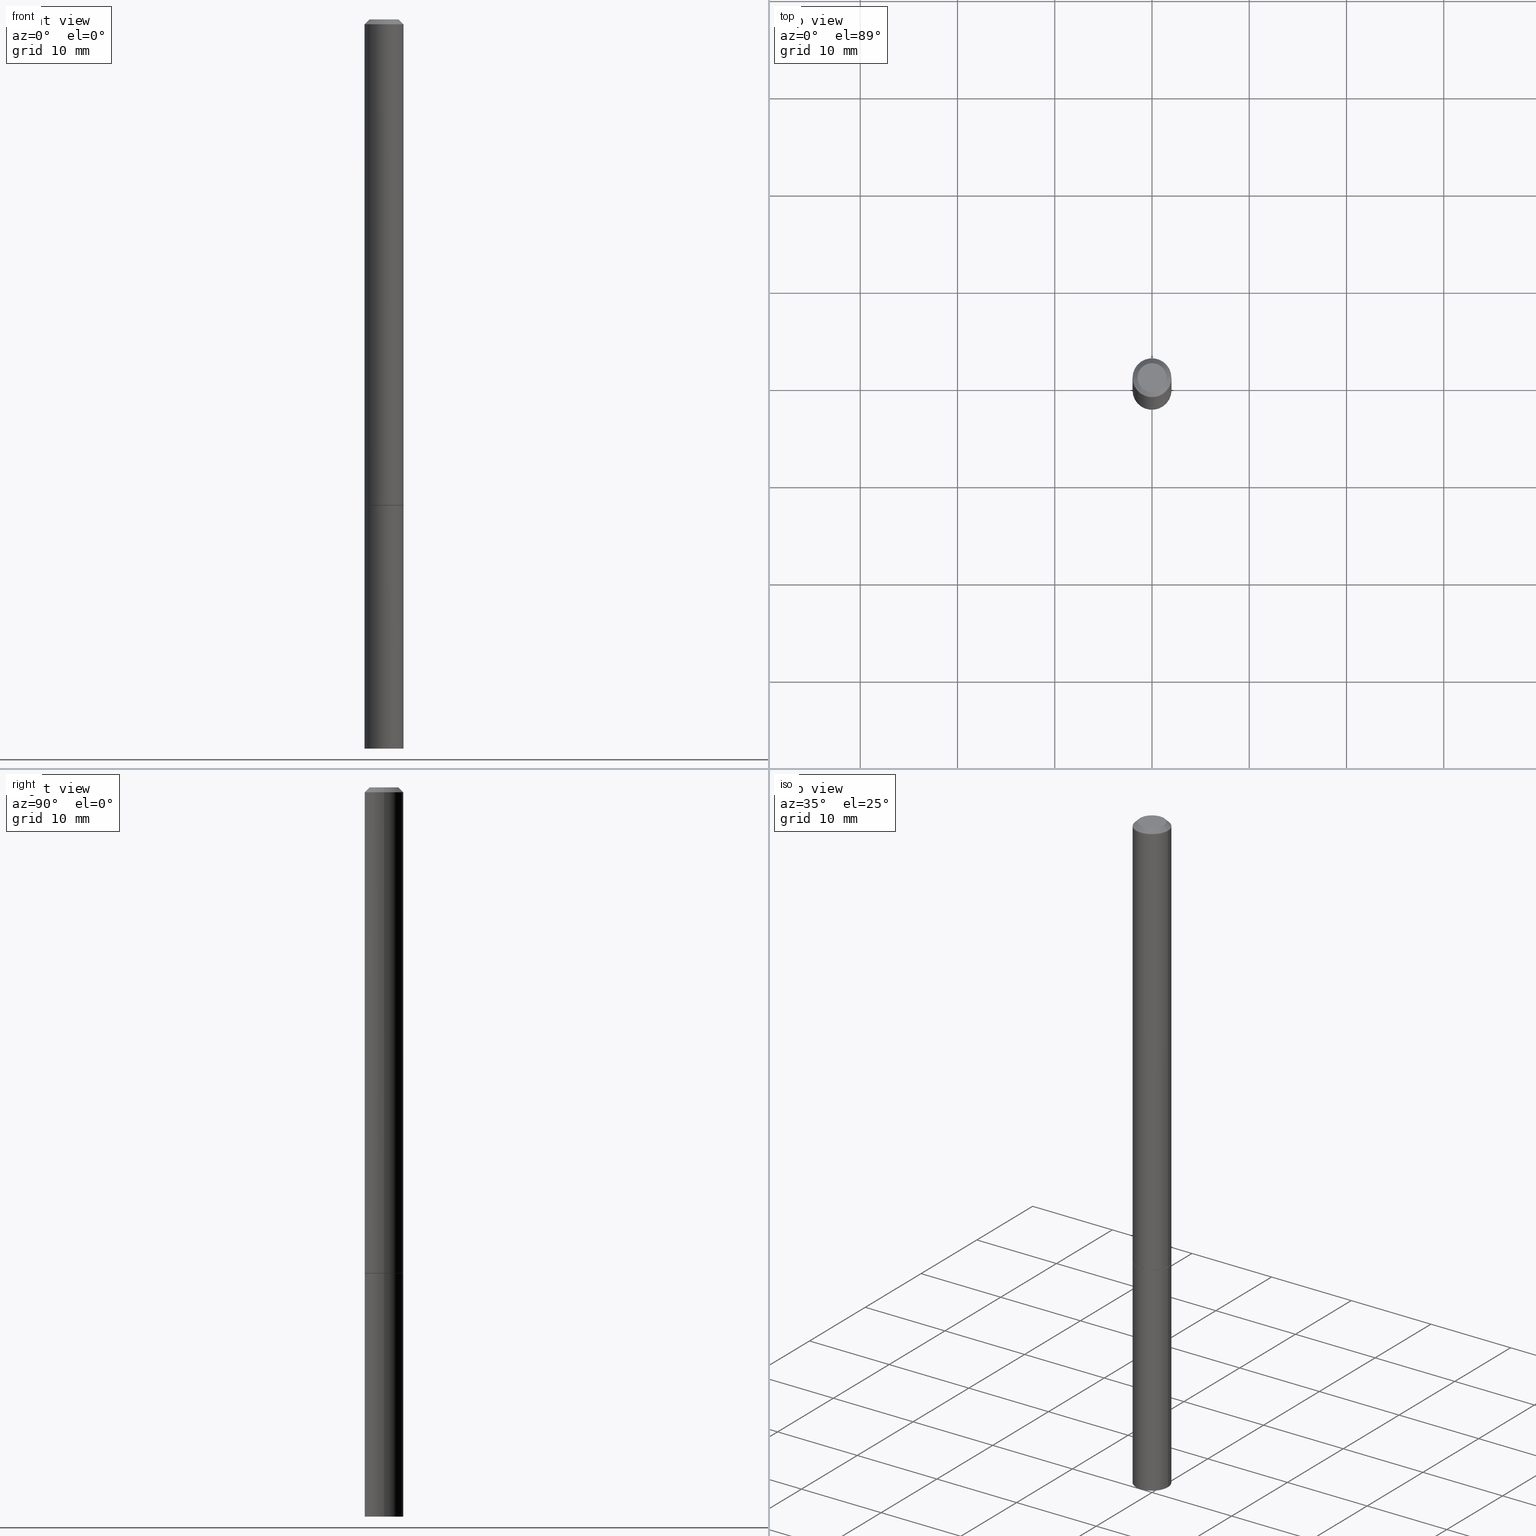
[diagram: canonical four-view strip — front | top / right | iso, engineering-drawing reading convention]
A machine part, canonical four-view strip (front | top / right | iso — engineering-drawing reading convention). The complete STEP part file that produces these views, byte-faithful:
ISO-10303-21;
HEADER;
FILE_DESCRIPTION (( 'STEP AP203' ),
    '1' );
FILE_NAME ('43103.STEP',
    '2024-02-28T03:52:49',
    ( '' ),
    ( '' ),
    'SwSTEP 2.0',
    'SolidWorks 2023',
    '' );
FILE_SCHEMA (( 'CONFIG_CONTROL_DESIGN' ));
ENDSEC;

DATA;
#1 = DIRECTION ( 'NONE',  ( -2.445468806185136597E-29, 3.491481338843145583E-15, 1.000000000000000000 ) ) ;
#2 = PERSON_AND_ORGANIZATION ( #279, #108 ) ;
#3 = CARTESIAN_POINT ( 'NONE',  ( -0.05874999999999980238, 4.451638707024979054E-16, -2.990994270918716988E-30 ) ) ;
#4 = APPLICATION_PROTOCOL_DEFINITION ( 'international standard', 'config_control_design', 1994, #148 ) ;
#5 = DIRECTION ( 'NONE',  ( -0.7071067811865467956, 2.468850131082249172E-15, -0.7071067811865482389 ) ) ;
#6 = ORIENTED_EDGE ( 'NONE', *, *, #169, .F. ) ;
#7 = EDGE_CURVE ( 'NONE', #15, #336, #228, .T. ) ;
#8 = PERSON_AND_ORGANIZATION_ROLE ( 'design_supplier' ) ;
#9 = ORIENTED_EDGE ( 'NONE', *, *, #80, .T. ) ;
#10 = MECHANICAL_CONTEXT ( 'NONE', #148, 'mechanical' ) ;
#11 = DIRECTION ( 'NONE',  ( 2.438088387897960049E-29, -3.491481338843145188E-15, -1.000000000000000000 ) ) ;
#12 =( GEOMETRIC_REPRESENTATION_CONTEXT ( 3 ) GLOBAL_UNCERTAINTY_ASSIGNED_CONTEXT ( ( #47 ) ) GLOBAL_UNIT_ASSIGNED_CONTEXT ( ( #324, #186, #194 ) ) REPRESENTATION_CONTEXT ( 'NONE', 'WORKASPACE' ) );
#13 = VERTEX_POINT ( 'NONE', #56 ) ;
#14 = DIRECTION ( 'NONE',  ( -2.445468806185136877E-29, 3.491481338843145188E-15, 1.000000000000000000 ) ) ;
#15 = VERTEX_POINT ( 'NONE', #19 ) ;
#16 = ADVANCED_FACE ( 'NONE', ( #26 ), #218, .T. ) ;
#17 = AXIS2_PLACEMENT_3D ( 'NONE', #284, #256, #144 ) ;
#18 = ADVANCED_BREP_SHAPE_REPRESENTATION ( '43103', ( #45, #286, #259 ), #12 ) ;
#19 = CARTESIAN_POINT ( 'NONE',  ( 0.07875000000000000056, -7.419397845041680468E-15, -1.967499999999999805 ) ) ;
#20 = DIRECTION ( 'NONE',  ( 1.000000000000000000, -6.982962677686265922E-15, 4.876176775795935232E-29 ) ) ;
#21 = ORIENTED_EDGE ( 'NONE', *, *, #185, .T. ) ;
#22 = DIRECTION ( 'NONE',  ( 1.000000000000000000, -6.982962677686266711E-15, 4.876176775795935793E-29 ) ) ;
#23 = DATE_AND_TIME ( #161, #248 ) ;
#24 = ORIENTED_EDGE ( 'NONE', *, *, #290, .F. ) ;
#25 = VERTEX_POINT ( 'NONE', #330 ) ;
#26 = FACE_OUTER_BOUND ( 'NONE', #130, .T. ) ;
#27 = CARTESIAN_POINT ( 'NONE',  ( 7.220980290903470182E-29, -1.030964609733603853E-14, -2.952799999999999869 ) ) ;
#28 = PERSON_AND_ORGANIZATION ( #279, #108 ) ;
#29 = CARTESIAN_POINT ( 'NONE',  ( 0.000000000000000000, 0.000000000000000000, 0.000000000000000000 ) ) ;
#30 = DIRECTION ( 'NONE',  ( 2.438088387897960049E-29, -3.491481338843145188E-15, -1.000000000000000000 ) ) ;
#31 = DATE_AND_TIME ( #337, #232 ) ;
#32 = CARTESIAN_POINT ( 'NONE',  ( -0.07874999999999977851, 4.800786840909289628E-16, -0.02000000000000001776 ) ) ;
#33 = DIRECTION ( 'NONE',  ( -2.445468806185136597E-29, 3.491481338843145583E-15, 1.000000000000000000 ) ) ;
#34 = LOCAL_TIME ( 22, 52, 49.00000000000000000, #316 ) ;
#35 = EDGE_LOOP ( 'NONE', ( #287, #54, #63, #102 ) ) ;
#36 = APPROVAL_ROLE ( '' ) ;
#37 = LINE ( 'NONE', #236, #247 ) ;
#38 = DIRECTION ( 'NONE',  ( -2.445468806185136597E-29, 3.491481338843145583E-15, 1.000000000000000000 ) ) ;
#39 = AXIS2_PLACEMENT_3D ( 'NONE', #267, #30, #313 ) ;
#40 = EDGE_LOOP ( 'NONE', ( #354, #9, #167, #126 ) ) ;
#41 = CIRCLE ( 'NONE', #155, 0.07874999999999977851 ) ;
#42 = ORIENTED_EDGE ( 'NONE', *, *, #322, .T. ) ;
#43 = DIRECTION ( 'NONE',  ( -2.445468806185136597E-29, 3.491481338843145583E-15, 1.000000000000000000 ) ) ;
#44 = PRODUCT_RELATED_PRODUCT_CATEGORY ( 'detail', '', ( #132 ) ) ;
#45 = MANIFOLD_SOLID_BREP ( 'Body-Move/Copy2[1]', #344 ) ;
#46 = AXIS2_PLACEMENT_3D ( 'NONE', #89, #33, #20 ) ;
#47 = UNCERTAINTY_MEASURE_WITH_UNIT (LENGTH_MEASURE( 1.000000000000000082E-05 ), #324, 'distance_accuracy_value', 'NONE');
#48 = LINE ( 'NONE', #212, #356 ) ;
#49 = ADVANCED_FACE ( 'NONE', ( #136 ), #326, .T. ) ;
#50 = DIRECTION ( 'NONE',  ( -2.445468806185136597E-29, 3.491481338843145583E-15, 1.000000000000000000 ) ) ;
#51 = DIRECTION ( 'NONE',  ( -2.445468806185136597E-29, 3.491481338843145583E-15, 1.000000000000000000 ) ) ;
#52 = PERSON_AND_ORGANIZATION_ROLE ( 'creator' ) ;
#53 = PERSON_AND_ORGANIZATION ( #279, #108 ) ;
#54 = ORIENTED_EDGE ( 'NONE', *, *, #113, .T. ) ;
#55 = DATE_TIME_ROLE ( 'creation_date' ) ;
#56 = CARTESIAN_POINT ( 'NONE',  ( 0.07875000000000000056, -1.085955440820383187E-14, -2.952799999999999869 ) ) ;
#57 = DATE_TIME_ROLE ( 'classification_date' ) ;
#58 = CARTESIAN_POINT ( 'NONE',  ( 4.811459876169255671E-29, -6.869489534173887122E-15, -1.967499999999999805 ) ) ;
#59 = ADVANCED_FACE ( 'NONE', ( #190 ), #62, .T. ) ;
#60 = DIRECTION ( 'NONE',  ( -1.000000000000000000, 6.982962677686265922E-15, 0.000000000000000000 ) ) ;
#61 = AXIS2_PLACEMENT_3D ( 'NONE', #249, #83, #198 ) ;
#62 = CONICAL_SURFACE ( 'NONE', #217, 0.07774999999999999967, 0.7853981633972775267 ) ;
#63 = ORIENTED_EDGE ( 'NONE', *, *, #240, .F. ) ;
#64 = APPROVAL_PERSON_ORGANIZATION ( #275, #283, #329 ) ;
#65 = CARTESIAN_POINT ( 'NONE',  ( 4.890937612370276662E-31, -6.982962677686296539E-17, -0.02000000000000001776 ) ) ;
#66 = DIRECTION ( 'NONE',  ( 0.7071067811864267805, -2.468850131080992517E-15, 0.7071067811866682540 ) ) ;
#67 = CARTESIAN_POINT ( 'NONE',  ( 4.813905344975441835E-29, -6.872981015512731707E-15, -1.968500000000000139 ) ) ;
#68 = AXIS2_PLACEMENT_3D ( 'NONE', #133, #195, #244 ) ;
#69 = CC_DESIGN_PERSON_AND_ORGANIZATION_ASSIGNMENT ( #160, #8, ( #295 ) ) ;
#70 = DIRECTION ( 'NONE',  ( -2.445468806185136597E-29, 3.491481338843145583E-15, 1.000000000000000000 ) ) ;
#71 = DIRECTION ( 'NONE',  ( 1.000000000000000000, -6.982962677686261977E-15, 0.000000000000000000 ) ) ;
#72 = AXIS2_PLACEMENT_3D ( 'NONE', #122, #38, #124 ) ;
#73 = ADVANCED_FACE ( 'NONE', ( #276 ), #299, .T. ) ;
#74 = CARTESIAN_POINT ( 'NONE',  ( 0.07875000000000000056, -7.422889326380523475E-15, -1.968499999999999694 ) ) ;
#75 = DATE_AND_TIME ( #258, #334 ) ;
#76 = CARTESIAN_POINT ( 'NONE',  ( 0.000000000000000000, 0.000000000000000000, 0.000000000000000000 ) ) ;
#77 = APPROVAL_PERSON_ORGANIZATION ( #257, #95, #229 ) ;
#78 = DIRECTION ( 'NONE',  ( 1.000000000000000000, -6.982962677686265922E-15, 4.876176775795935793E-29 ) ) ;
#79 = FACE_OUTER_BOUND ( 'NONE', #94, .T. ) ;
#80 = EDGE_CURVE ( 'NONE', #213, #336, #225, .T. ) ;
#81 = VERTEX_POINT ( 'NONE', #307 ) ;
#82 = FACE_OUTER_BOUND ( 'NONE', #250, .T. ) ;
#83 = DIRECTION ( 'NONE',  ( -2.445468806185136597E-29, 3.491481338843145583E-15, 1.000000000000000000 ) ) ;
#84 = DIRECTION ( 'NONE',  ( -2.445468806185136597E-29, 3.491481338843145583E-15, 1.000000000000000000 ) ) ;
#85 = EDGE_CURVE ( 'NONE', #156, #15, #305, .T. ) ;
#86 = CARTESIAN_POINT ( 'NONE',  ( 0.07874999999999977851, -6.100938441013695115E-16, -0.02000000000000001776 ) ) ;
#87 = AXIS2_PLACEMENT_3D ( 'NONE', #29, #343, #92 ) ;
#88 = AXIS2_PLACEMENT_3D ( 'NONE', #304, #11, #320 ) ;
#89 = CARTESIAN_POINT ( 'NONE',  ( 0.000000000000000000, 0.000000000000000000, 0.000000000000000000 ) ) ;
#90 = APPROVAL_STATUS ( 'not_yet_approved' ) ;
#91 = ORIENTED_EDGE ( 'NONE', *, *, #143, .F. ) ;
#92 = DIRECTION ( 'NONE',  ( 1.000000000000000000, -6.982962677686266711E-15, 4.876176775795935793E-29 ) ) ;
#93 = LINE ( 'NONE', #203, #117 ) ;
#94 = EDGE_LOOP ( 'NONE', ( #125, #341, #6, #158 ) ) ;
#95 = APPROVAL ( #90, 'UNSPECIFIED' ) ;
#96 = VERTEX_POINT ( 'NONE', #3 ) ;
#97 = PLANE ( 'NONE',  #39 ) ;
#98 = PRODUCT_DEFINITION ( 'UNKNOWN', '', #295, #293 ) ;
#99 = ORIENTED_EDGE ( 'NONE', *, *, #269, .F. ) ;
#100 = VECTOR ( 'NONE', #362, 39.37007874015748143 ) ;
#101 = APPROVAL_STATUS ( 'not_yet_approved' ) ;
#102 = ORIENTED_EDGE ( 'NONE', *, *, #7, .F. ) ;
#103 = EDGE_CURVE ( 'NONE', #140, #15, #210, .T. ) ;
#104 = DIRECTION ( 'NONE',  ( 1.000000000000000000, -6.982962677686261977E-15, 0.000000000000000000 ) ) ;
#105 = AXIS2_PLACEMENT_3D ( 'NONE', #58, #123, #119 ) ;
#106 = CONICAL_SURFACE ( 'NONE', #215, 0.07874999999999977851, 0.7853981633974472798 ) ;
#107 = ORIENTED_EDGE ( 'NONE', *, *, #80, .F. ) ;
#108 = ORGANIZATION ( 'UNSPECIFIED', 'UNSPECIFIED', '' ) ;
#109 = DIRECTION ( 'NONE',  ( 2.445468806185136597E-29, -3.491481338843145583E-15, -1.000000000000000000 ) ) ;
#110 = APPROVAL_DATE_TIME ( #23, #283 ) ;
#111 = ORIENTED_EDGE ( 'NONE', *, *, #113, .F. ) ;
#112 = FACE_OUTER_BOUND ( 'NONE', #178, .T. ) ;
#113 = EDGE_CURVE ( 'NONE', #156, #332, #37, .T. ) ;
#114 = CARTESIAN_POINT ( 'NONE',  ( 4.813905344975441835E-29, -6.872981015512731707E-15, -1.968500000000000139 ) ) ;
#115 = APPROVAL_STATUS ( 'not_yet_approved' ) ;
#116 = EDGE_LOOP ( 'NONE', ( #235, #266, #197, #351 ) ) ;
#117 = VECTOR ( 'NONE', #171, 39.37007874015748143 ) ;
#118 = DIMENSIONAL_EXPONENTS ( 1.000000000000000000, 0.000000000000000000, 0.000000000000000000, 0.000000000000000000, 0.000000000000000000, 0.000000000000000000, 0.000000000000000000 ) ;
#119 = DIRECTION ( 'NONE',  ( 1.000000000000000000, -6.982962677686261977E-15, 0.000000000000000000 ) ) ;
#120 = PERSON_AND_ORGANIZATION ( #279, #108 ) ;
#121 = CC_DESIGN_PERSON_AND_ORGANIZATION_ASSIGNMENT ( #53, #230, ( #350 ) ) ;
#122 = CARTESIAN_POINT ( 'NONE',  ( 4.890937612370276662E-31, -6.982962677686296539E-17, -0.02000000000000001776 ) ) ;
#123 = DIRECTION ( 'NONE',  ( -2.445468806185136597E-29, 3.491481338843145583E-15, 1.000000000000000000 ) ) ;
#124 = DIRECTION ( 'NONE',  ( 1.000000000000000000, -6.982962677686265922E-15, 0.000000000000000000 ) ) ;
#125 = ORIENTED_EDGE ( 'NONE', *, *, #290, .T. ) ;
#126 = ORIENTED_EDGE ( 'NONE', *, *, #231, .F. ) ;
#127 = APPROVAL ( #101, 'UNSPECIFIED' ) ;
#128 = AXIS2_PLACEMENT_3D ( 'NONE', #327, #191, #78 ) ;
#129 = APPROVAL_DATE_TIME ( #221, #127 ) ;
#130 = EDGE_LOOP ( 'NONE', ( #99, #268 ) ) ;
#131 = CC_DESIGN_PERSON_AND_ORGANIZATION_ASSIGNMENT ( #2, #52, ( #295 ) ) ;
#132 = PRODUCT ( '43103', '43103', '', ( #10 ) ) ;
#133 = CARTESIAN_POINT ( 'NONE',  ( 5.499083108678655265E-16, 0.07874999999998968936, -2.952800000000000313 ) ) ;
#134 = ORIENTED_EDGE ( 'NONE', *, *, #317, .F. ) ;
#135 = AXIS2_PLACEMENT_3D ( 'NONE', #311, #1, #263 ) ;
#136 = FACE_OUTER_BOUND ( 'NONE', #188, .T. ) ;
#137 = CARTESIAN_POINT ( 'NONE',  ( 0.000000000000000000, 0.000000000000000000, 0.000000000000000000 ) ) ;
#138 = ORIENTED_EDGE ( 'NONE', *, *, #302, .T. ) ;
#139 = ORIENTED_EDGE ( 'NONE', *, *, #85, .F. ) ;
#140 = VERTEX_POINT ( 'NONE', #241 ) ;
#141 = SECURITY_CLASSIFICATION_LEVEL ( 'unclassified' ) ;
#142 = CARTESIAN_POINT ( 'NONE',  ( 0.05874999999999980238, -5.065740507352228268E-16, 3.205406768517973837E-30 ) ) ;
#143 = EDGE_CURVE ( 'NONE', #265, #140, #145, .T. ) ;
#144 = DIRECTION ( 'NONE',  ( 1.000000000000000000, -6.982962677686261977E-15, 0.000000000000000000 ) ) ;
#145 = CIRCLE ( 'NONE', #150, 0.07774999999999999967 ) ;
#146 = CIRCLE ( 'NONE', #288, 0.07875000000000000056 ) ;
#147 = ORIENTED_EDGE ( 'NONE', *, *, #85, .T. ) ;
#148 = APPLICATION_CONTEXT ( 'configuration controlled 3d designs of mechanical parts and assemblies' ) ;
#149 = FACE_OUTER_BOUND ( 'NONE', #222, .T. ) ;
#150 = AXIS2_PLACEMENT_3D ( 'NONE', #67, #179, #71 ) ;
#151 = DIRECTION ( 'NONE',  ( 1.000000000000000000, 0.000000000000000000, 0.000000000000000000 ) ) ;
#152 = APPROVAL_PERSON_ORGANIZATION ( #120, #127, #36 ) ;
#153 = CC_DESIGN_DATE_AND_TIME_ASSIGNMENT ( #297, #55, ( #98 ) ) ;
#154 = CLOSED_SHELL ( 'NONE', ( #325, #73, #347, #352, #296, #59, #289, #175 ) ) ;
#155 = AXIS2_PLACEMENT_3D ( 'NONE', #65, #173, #309 ) ;
#156 = VERTEX_POINT ( 'NONE', #183 ) ;
#157 = EDGE_LOOP ( 'NONE', ( #107, #355, #209, #166 ) ) ;
#158 = ORIENTED_EDGE ( 'NONE', *, *, #103, .F. ) ;
#159 = DIRECTION ( 'NONE',  ( 1.000000000000000000, -6.982962677686261977E-15, 0.000000000000000000 ) ) ;
#160 = PERSON_AND_ORGANIZATION ( #279, #108 ) ;
#161 = CALENDAR_DATE ( 2024, 27, 2 ) ;
#162 = EDGE_CURVE ( 'NONE', #13, #360, #48, .T. ) ;
#163 = DIRECTION ( 'NONE',  ( -2.445468806185136597E-29, 3.491481338843145583E-15, 1.000000000000000000 ) ) ;
#164 = APPLICATION_CONTEXT ( 'configuration controlled 3d designs of mechanical parts and assemblies' ) ;
#165 = CC_DESIGN_SECURITY_CLASSIFICATION ( #350, ( #295 ) ) ;
#166 = ORIENTED_EDGE ( 'NONE', *, *, #317, .T. ) ;
#167 = ORIENTED_EDGE ( 'NONE', *, *, #240, .T. ) ;
#168 = DIRECTION ( 'NONE',  ( -2.445468806185136597E-29, 3.491481338843145583E-15, 1.000000000000000000 ) ) ;
#169 = EDGE_CURVE ( 'NONE', #15, #156, #204, .T. ) ;
#170 = AXIS2_PLACEMENT_3D ( 'NONE', #340, #43, #174 ) ;
#171 = DIRECTION ( 'NONE',  ( -0.7071067811864267805, 7.493145998869918709E-15, 0.7071067811866682540 ) ) ;
#172 = ORIENTED_EDGE ( 'NONE', *, *, #143, .T. ) ;
#173 = DIRECTION ( 'NONE',  ( -2.445468806185136597E-29, 3.491481338843145583E-15, 1.000000000000000000 ) ) ;
#174 = DIRECTION ( 'NONE',  ( 1.000000000000000000, -6.982962677686261977E-15, 0.000000000000000000 ) ) ;
#175 = ADVANCED_FACE ( 'NONE', ( #149 ), #97, .F. ) ;
#176 = CIRCLE ( 'NONE', #17, 0.07875000000000000056 ) ;
#177 = CC_DESIGN_APPROVAL ( #95, ( #295 ) ) ;
#178 = EDGE_LOOP ( 'NONE', ( #42, #21 ) ) ;
#179 = DIRECTION ( 'NONE',  ( -2.445468806185136597E-29, 3.491481338843145583E-15, 1.000000000000000000 ) ) ;
#180 = DIRECTION ( 'NONE',  ( 1.000000000000000000, -6.982962677686261977E-15, 0.000000000000000000 ) ) ;
#181 = CALENDAR_DATE ( 2024, 27, 2 ) ;
#182 = EDGE_CURVE ( 'NONE', #213, #96, #242, .T. ) ;
#183 = CARTESIAN_POINT ( 'NONE',  ( -0.07875000000000000056, -2.910107176064290492E-15, -1.967499999999999805 ) ) ;
#184 = CONICAL_SURFACE ( 'NONE', #170, 0.07774999999999999967, 0.7853981633972775267 ) ;
#185 = EDGE_CURVE ( 'NONE', #81, #360, #176, .T. ) ;
#186 =( NAMED_UNIT ( * ) PLANE_ANGLE_UNIT ( ) SI_UNIT ( $, .RADIAN. ) );
#187 = CALENDAR_DATE ( 2024, 27, 2 ) ;
#188 = EDGE_LOOP ( 'NONE', ( #216, #138, #255, #281 ) ) ;
#189 = AXIS2_PLACEMENT_3D ( 'NONE', #196, #223, #303 ) ;
#190 = FACE_OUTER_BOUND ( 'NONE', #338, .T. ) ;
#191 = DIRECTION ( 'NONE',  ( -2.438088387897960049E-29, 3.491481338843145188E-15, 1.000000000000000000 ) ) ;
#192 = COORDINATED_UNIVERSAL_TIME_OFFSET ( 5, 0, .BEHIND. ) ;
#193 = EDGE_CURVE ( 'NONE', #265, #156, #93, .T. ) ;
#194 =( NAMED_UNIT ( * ) SI_UNIT ( $, .STERADIAN. ) SOLID_ANGLE_UNIT ( ) );
#195 = DIRECTION ( 'NONE',  ( 2.438088387897960049E-29, -3.491481338843145188E-15, -1.000000000000000000 ) ) ;
#196 = CARTESIAN_POINT ( 'NONE',  ( 4.890937612370276662E-31, -6.982962677686296539E-17, -0.02000000000000001776 ) ) ;
#197 = ORIENTED_EDGE ( 'NONE', *, *, #162, .T. ) ;
#198 = DIRECTION ( 'NONE',  ( 1.000000000000000000, -6.982962677686266711E-15, 4.876176775795935793E-29 ) ) ;
#199 = AXIS2_PLACEMENT_3D ( 'NONE', #321, #70, #180 ) ;
#200 = DIRECTION ( 'NONE',  ( 0.7071067811865467956, -7.319954787623254468E-15, -0.7071067811865482389 ) ) ;
#201 = DIRECTION ( 'NONE',  ( 1.000000000000000000, -6.982962677686261977E-15, 0.000000000000000000 ) ) ;
#202 = CYLINDRICAL_SURFACE ( 'NONE', #46, 0.07875000000000000056 ) ;
#203 = CARTESIAN_POINT ( 'NONE',  ( -0.07774999999999999967, -6.320534038459253914E-15, -1.968500000000000139 ) ) ;
#204 = CIRCLE ( 'NONE', #199, 0.07875000000000000056 ) ;
#205 = CC_DESIGN_APPROVAL ( #127, ( #98 ) ) ;
#206 = CARTESIAN_POINT ( 'NONE',  ( 0.000000000000000000, 0.000000000000000000, 0.000000000000000000 ) ) ;
#207 = EDGE_CURVE ( 'NONE', #96, #213, #318, .T. ) ;
#208 = CARTESIAN_POINT ( 'NONE',  ( 7.220980290903470182E-29, -1.030964609733603853E-14, -2.952799999999999869 ) ) ;
#209 = ORIENTED_EDGE ( 'NONE', *, *, #231, .T. ) ;
#210 = LINE ( 'NONE', #310, #314 ) ;
#211 = DIRECTION ( 'NONE',  ( -2.445468806185136597E-29, 3.491481338843145583E-15, 1.000000000000000000 ) ) ;
#212 = CARTESIAN_POINT ( 'NONE',  ( 0.07875000000000000056, -5.499083108677934443E-16, 3.839989210939299016E-30 ) ) ;
#213 = VERTEX_POINT ( 'NONE', #142 ) ;
#214 = AXIS2_PLACEMENT_3D ( 'NONE', #76, #50, #301 ) ;
#215 = AXIS2_PLACEMENT_3D ( 'NONE', #308, #109, #60 ) ;
#216 = ORIENTED_EDGE ( 'NONE', *, *, #269, .T. ) ;
#217 = AXIS2_PLACEMENT_3D ( 'NONE', #114, #163, #245 ) ;
#218 = PLANE ( 'NONE',  #68 ) ;
#219 = DIRECTION ( 'NONE',  ( -2.445468806185136597E-29, 3.491481338843145583E-15, 1.000000000000000000 ) ) ;
#220 = SHAPE_DEFINITION_REPRESENTATION ( #366, #18 ) ;
#221 = DATE_AND_TIME ( #187, #34 ) ;
#222 = EDGE_LOOP ( 'NONE', ( #251, #365 ) ) ;
#223 = DIRECTION ( 'NONE',  ( 2.445468806185136597E-29, -3.491481338843145583E-15, -1.000000000000000000 ) ) ;
#224 = CYLINDRICAL_SURFACE ( 'NONE', #264, 0.07874999999999987566 ) ;
#225 = LINE ( 'NONE', #86, #270 ) ;
#226 = FACE_OUTER_BOUND ( 'NONE', #116, .T. ) ;
#227 = CC_DESIGN_PERSON_AND_ORGANIZATION_ASSIGNMENT ( #333, #239, ( #98 ) ) ;
#228 = LINE ( 'NONE', #278, #349 ) ;
#229 = APPROVAL_ROLE ( '' ) ;
#230 = PERSON_AND_ORGANIZATION_ROLE ( 'classification_officer' ) ;
#231 = EDGE_CURVE ( 'NONE', #96, #332, #260, .T. ) ;
#232 = LOCAL_TIME ( 22, 52, 49.00000000000000000, #192 ) ;
#233 = CARTESIAN_POINT ( 'NONE',  ( -0.07774999999999999967, -6.315235584111030723E-15, -1.968500000000000139 ) ) ;
#234 = ORIENTED_EDGE ( 'NONE', *, *, #7, .T. ) ;
#235 = ORIENTED_EDGE ( 'NONE', *, *, #302, .F. ) ;
#236 = CARTESIAN_POINT ( 'NONE',  ( -0.07874999999999987566, 5.595524044110780128E-16, -3.873661383575732186E-30 ) ) ;
#237 = CC_DESIGN_DATE_AND_TIME_ASSIGNMENT ( #75, #57, ( #350 ) ) ;
#238 = LOCAL_TIME ( 22, 52, 49.00000000000000000, #272 ) ;
#239 = PERSON_AND_ORGANIZATION_ROLE ( 'creator' ) ;
#240 = EDGE_CURVE ( 'NONE', #336, #332, #282, .T. ) ;
#241 = CARTESIAN_POINT ( 'NONE',  ( 0.07774999999999999967, -7.415906363702839039E-15, -1.968500000000000139 ) ) ;
#242 = CIRCLE ( 'NONE', #87, 0.05874999999999980238 ) ;
#243 = AXIS2_PLACEMENT_3D ( 'NONE', #335, #84, #273 ) ;
#244 = DIRECTION ( 'NONE',  ( -1.000000000000000000, 6.982962677686265922E-15, -4.876176775795935793E-29 ) ) ;
#245 = DIRECTION ( 'NONE',  ( 1.000000000000000000, -6.982962677686261977E-15, 0.000000000000000000 ) ) ;
#246 = FACE_OUTER_BOUND ( 'NONE', #40, .T. ) ;
#247 = VECTOR ( 'NONE', #14, 39.37007874015748143 ) ;
#248 = LOCAL_TIME ( 22, 52, 49.00000000000000000, #280 ) ;
#249 = CARTESIAN_POINT ( 'NONE',  ( 0.000000000000000000, 0.000000000000000000, 0.000000000000000000 ) ) ;
#250 = EDGE_LOOP ( 'NONE', ( #24, #91 ) ) ;
#251 = ORIENTED_EDGE ( 'NONE', *, *, #207, .T. ) ;
#252 = LINE ( 'NONE', #328, #100 ) ;
#253 = CARTESIAN_POINT ( 'NONE',  ( 0.07874999999999977851, -6.100938441013695115E-16, -0.02000000000000001776 ) ) ;
#254 = CC_DESIGN_PERSON_AND_ORGANIZATION_ASSIGNMENT ( #28, #359, ( #132 ) ) ;
#255 = ORIENTED_EDGE ( 'NONE', *, *, #322, .F. ) ;
#256 = DIRECTION ( 'NONE',  ( -2.445468806185136597E-29, 3.491481338843145583E-15, 1.000000000000000000 ) ) ;
#257 = PERSON_AND_ORGANIZATION ( #279, #108 ) ;
#258 = CALENDAR_DATE ( 2024, 27, 2 ) ;
#259 = AXIS2_PLACEMENT_3D ( 'NONE', #206, #346, #151 ) ;
#260 = LINE ( 'NONE', #285, #345 ) ;
#261 = APPROVAL_DATE_TIME ( #31, #95 ) ;
#262 = APPLICATION_PROTOCOL_DEFINITION ( 'international standard', 'config_control_design', 1994, #164 ) ;
#263 = DIRECTION ( 'NONE',  ( 1.000000000000000000, -6.982962677686266711E-15, 4.876176775795935793E-29 ) ) ;
#264 = AXIS2_PLACEMENT_3D ( 'NONE', #137, #219, #22 ) ;
#265 = VERTEX_POINT ( 'NONE', #233 ) ;
#266 = ORIENTED_EDGE ( 'NONE', *, *, #358, .T. ) ;
#267 = CARTESIAN_POINT ( 'NONE',  ( 4.102490573140667000E-16, 0.05874999999999980238, -2.051245286570341142E-16 ) ) ;
#268 = ORIENTED_EDGE ( 'NONE', *, *, #358, .F. ) ;
#269 = EDGE_CURVE ( 'NONE', #13, #25, #357, .T. ) ;
#270 = VECTOR ( 'NONE', #200, 39.37007874015748143 ) ;
#271 = CIRCLE ( 'NONE', #277, 0.07774999999999999967 ) ;
#272 = COORDINATED_UNIVERSAL_TIME_OFFSET ( 5, 0, .BEHIND. ) ;
#273 = DIRECTION ( 'NONE',  ( 1.000000000000000000, -6.982962677686261977E-15, 0.000000000000000000 ) ) ;
#274 = FACE_OUTER_BOUND ( 'NONE', #348, .T. ) ;
#275 = PERSON_AND_ORGANIZATION ( #279, #108 ) ;
#276 = FACE_OUTER_BOUND ( 'NONE', #35, .T. ) ;
#277 = AXIS2_PLACEMENT_3D ( 'NONE', #300, #51, #159 ) ;
#278 = CARTESIAN_POINT ( 'NONE',  ( 0.07874999999999987566, -5.499083108677926554E-16, 3.839989210939293411E-30 ) ) ;
#279 = PERSON ( 'UNSPECIFIED', 'UNSPECIFIED', 'UNSPECIFIED', ('UNSPECIFIED'), ('UNSPECIFIED'), ('UNSPECIFIED') ) ;
#280 = COORDINATED_UNIVERSAL_TIME_OFFSET ( 5, 0, .BEHIND. ) ;
#281 = ORIENTED_EDGE ( 'NONE', *, *, #162, .F. ) ;
#282 = CIRCLE ( 'NONE', #72, 0.07874999999999977851 ) ;
#283 = APPROVAL ( #115, 'UNSPECIFIED' ) ;
#284 = CARTESIAN_POINT ( 'NONE',  ( 4.813905344975440714E-29, -6.872981015512730918E-15, -1.968499999999999694 ) ) ;
#285 = CARTESIAN_POINT ( 'NONE',  ( -0.07874999999999977851, 4.800786840909289628E-16, -0.02000000000000001776 ) ) ;
#286 = MANIFOLD_SOLID_BREP ( 'Body-Move/Copy2[2]', #154 ) ;
#287 = ORIENTED_EDGE ( 'NONE', *, *, #169, .T. ) ;
#288 = AXIS2_PLACEMENT_3D ( 'NONE', #27, #168, #201 ) ;
#289 = ADVANCED_FACE ( 'NONE', ( #82 ), #363, .F. ) ;
#290 = EDGE_CURVE ( 'NONE', #140, #265, #271, .T. ) ;
#291 = AXIS2_PLACEMENT_3D ( 'NONE', #208, #211, #104 ) ;
#292 = ORIENTED_EDGE ( 'NONE', *, *, #193, .F. ) ;
#293 = DESIGN_CONTEXT ( 'detailed design', #164, 'design' ) ;
#294 = DIRECTION ( 'NONE',  ( -2.445468806185136877E-29, 3.491481338843145188E-15, 1.000000000000000000 ) ) ;
#295 = PRODUCT_DEFINITION_FORMATION_WITH_SPECIFIED_SOURCE ( 'ANY', '', #132, .NOT_KNOWN. ) ;
#296 = ADVANCED_FACE ( 'NONE', ( #274 ), #224, .T. ) ;
#297 = DATE_AND_TIME ( #181, #238 ) ;
#298 = LENGTH_MEASURE_WITH_UNIT ( LENGTH_MEASURE( 0.02539999999999999897 ), #353 );
#299 = CYLINDRICAL_SURFACE ( 'NONE', #61, 0.07874999999999987566 ) ;
#300 = CARTESIAN_POINT ( 'NONE',  ( 4.813905344975441835E-29, -6.872981015512731707E-15, -1.968500000000000139 ) ) ;
#301 = DIRECTION ( 'NONE',  ( 1.000000000000000000, -6.982962677686265922E-15, 4.876176775795935232E-29 ) ) ;
#302 = EDGE_CURVE ( 'NONE', #25, #81, #252, .T. ) ;
#303 = DIRECTION ( 'NONE',  ( -1.000000000000000000, 6.982962677686265922E-15, 0.000000000000000000 ) ) ;
#304 = CARTESIAN_POINT ( 'NONE',  ( 5.499083108678415648E-16, 0.07874999999999311717, -1.968500000000000361 ) ) ;
#305 = CIRCLE ( 'NONE', #105, 0.07875000000000000056 ) ;
#306 = CONICAL_SURFACE ( 'NONE', #189, 0.07874999999999977851, 0.7853981633974472798 ) ;
#307 = CARTESIAN_POINT ( 'NONE',  ( -0.07875000000000000056, -8.031761152013305527E-15, -1.968499999999999694 ) ) ;
#308 = CARTESIAN_POINT ( 'NONE',  ( 4.890937612370276662E-31, -6.982962677686296539E-17, -0.02000000000000001776 ) ) ;
#309 = DIRECTION ( 'NONE',  ( 1.000000000000000000, -6.982962677686265922E-15, 0.000000000000000000 ) ) ;
#310 = CARTESIAN_POINT ( 'NONE',  ( 0.07774999999999999967, -7.415906363702839039E-15, -1.968500000000000139 ) ) ;
#311 = CARTESIAN_POINT ( 'NONE',  ( 0.000000000000000000, 0.000000000000000000, 0.000000000000000000 ) ) ;
#312 = ORIENTED_EDGE ( 'NONE', *, *, #103, .T. ) ;
#313 = DIRECTION ( 'NONE',  ( -1.000000000000000000, 6.982962677686265922E-15, -4.876176775795935793E-29 ) ) ;
#314 = VECTOR ( 'NONE', #66, 39.37007874015748143 ) ;
#315 = ADVANCED_FACE ( 'NONE', ( #112 ), #331, .F. ) ;
#316 = COORDINATED_UNIVERSAL_TIME_OFFSET ( 5, 0, .BEHIND. ) ;
#317 = EDGE_CURVE ( 'NONE', #332, #336, #41, .T. ) ;
#318 = CIRCLE ( 'NONE', #135, 0.05874999999999980238 ) ;
#319 = DIRECTION ( 'NONE',  ( -2.445468806185136877E-29, 3.491481338843145188E-15, 1.000000000000000000 ) ) ;
#320 = DIRECTION ( 'NONE',  ( -1.000000000000000000, 6.982962677686265922E-15, -4.876176775795935793E-29 ) ) ;
#321 = CARTESIAN_POINT ( 'NONE',  ( 4.811459876169255671E-29, -6.869489534173887122E-15, -1.967499999999999805 ) ) ;
#322 = EDGE_CURVE ( 'NONE', #360, #81, #339, .T. ) ;
#323 = CC_DESIGN_APPROVAL ( #283, ( #350 ) ) ;
#324 =( CONVERSION_BASED_UNIT ( 'INCH', #298 ) LENGTH_UNIT ( ) NAMED_UNIT ( #118 ) );
#325 = ADVANCED_FACE ( 'NONE', ( #79 ), #184, .T. ) ;
#326 = CYLINDRICAL_SURFACE ( 'NONE', #214, 0.07875000000000000056 ) ;
#327 = CARTESIAN_POINT ( 'NONE',  ( 4.813905344975441835E-29, -6.872981015512731707E-15, -1.968500000000000139 ) ) ;
#328 = CARTESIAN_POINT ( 'NONE',  ( -0.07875000000000000056, 5.595524044110789003E-16, -3.873661383575737792E-30 ) ) ;
#329 = APPROVAL_ROLE ( '' ) ;
#330 = CARTESIAN_POINT ( 'NONE',  ( -0.07875000000000000056, -8.031761152013305527E-15, -2.952799999999999869 ) ) ;
#331 = PLANE ( 'NONE',  #88 ) ;
#332 = VERTEX_POINT ( 'NONE', #32 ) ;
#333 = PERSON_AND_ORGANIZATION ( #279, #108 ) ;
#334 = LOCAL_TIME ( 22, 52, 49.00000000000000000, #364 ) ;
#335 = CARTESIAN_POINT ( 'NONE',  ( 4.813905344975440714E-29, -6.872981015512730918E-15, -1.968499999999999694 ) ) ;
#336 = VERTEX_POINT ( 'NONE', #253 ) ;
#337 = CALENDAR_DATE ( 2024, 27, 2 ) ;
#338 = EDGE_LOOP ( 'NONE', ( #292, #172, #312, #139 ) ) ;
#339 = CIRCLE ( 'NONE', #243, 0.07875000000000000056 ) ;
#340 = CARTESIAN_POINT ( 'NONE',  ( 4.813905344975441835E-29, -6.872981015512731707E-15, -1.968500000000000139 ) ) ;
#341 = ORIENTED_EDGE ( 'NONE', *, *, #193, .T. ) ;
#342 = ADVANCED_FACE ( 'NONE', ( #226 ), #202, .T. ) ;
#343 = DIRECTION ( 'NONE',  ( -2.445468806185136597E-29, 3.491481338843145583E-15, 1.000000000000000000 ) ) ;
#344 = CLOSED_SHELL ( 'NONE', ( #49, #16, #315, #342 ) ) ;
#345 = VECTOR ( 'NONE', #5, 39.37007874015748143 ) ;
#346 = DIRECTION ( 'NONE',  ( 0.000000000000000000, 0.000000000000000000, 1.000000000000000000 ) ) ;
#347 = ADVANCED_FACE ( 'NONE', ( #246 ), #106, .T. ) ;
#348 = EDGE_LOOP ( 'NONE', ( #111, #147, #234, #134 ) ) ;
#349 = VECTOR ( 'NONE', #294, 39.37007874015748143 ) ;
#350 = SECURITY_CLASSIFICATION ( '', '', #141 ) ;
#351 = ORIENTED_EDGE ( 'NONE', *, *, #185, .F. ) ;
#352 = ADVANCED_FACE ( 'NONE', ( #361 ), #306, .T. ) ;
#353 =( LENGTH_UNIT ( ) NAMED_UNIT ( * ) SI_UNIT ( $, .METRE. ) );
#354 = ORIENTED_EDGE ( 'NONE', *, *, #182, .F. ) ;
#355 = ORIENTED_EDGE ( 'NONE', *, *, #207, .F. ) ;
#356 = VECTOR ( 'NONE', #319, 39.37007874015748143 ) ;
#357 = CIRCLE ( 'NONE', #291, 0.07875000000000000056 ) ;
#358 = EDGE_CURVE ( 'NONE', #25, #13, #146, .T. ) ;
#359 = PERSON_AND_ORGANIZATION_ROLE ( 'design_owner' ) ;
#360 = VERTEX_POINT ( 'NONE', #74 ) ;
#361 = FACE_OUTER_BOUND ( 'NONE', #157, .T. ) ;
#362 = DIRECTION ( 'NONE',  ( -2.445468806185136877E-29, 3.491481338843145188E-15, 1.000000000000000000 ) ) ;
#363 = PLANE ( 'NONE',  #128 ) ;
#364 = COORDINATED_UNIVERSAL_TIME_OFFSET ( 5, 0, .BEHIND. ) ;
#365 = ORIENTED_EDGE ( 'NONE', *, *, #182, .T. ) ;
#366 = PRODUCT_DEFINITION_SHAPE ( 'NONE', 'NONE',  #98 ) ;
ENDSEC;
END-ISO-10303-21;
